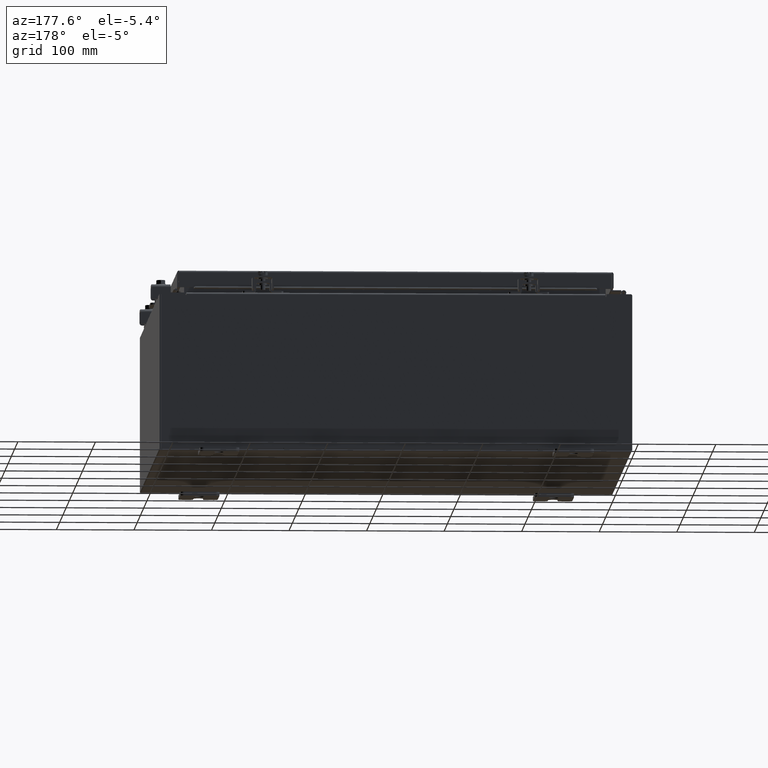
[diagram: clean part render]
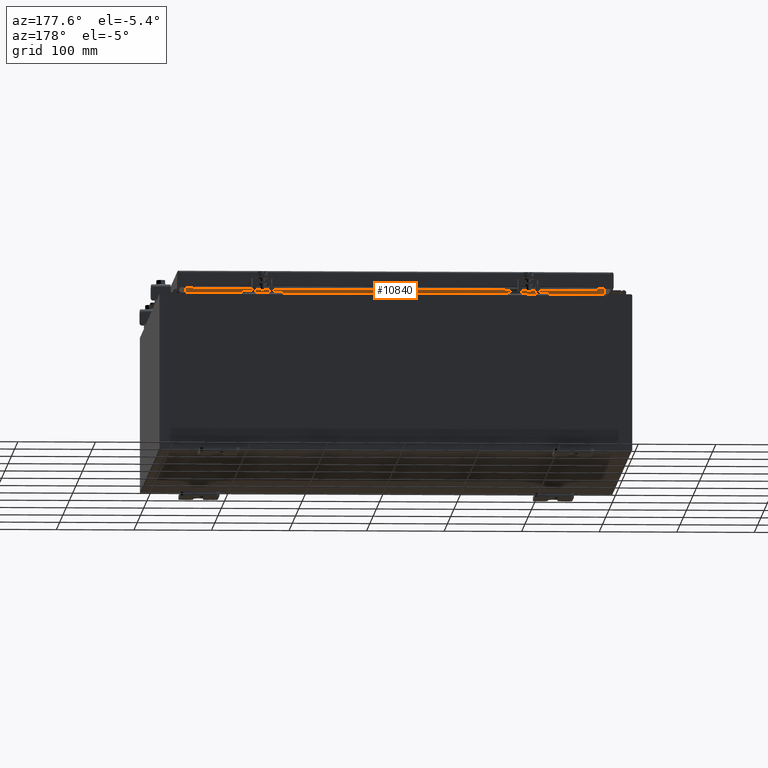
[diagram: same view with one face highlighted and labeled with its STEP entity id]
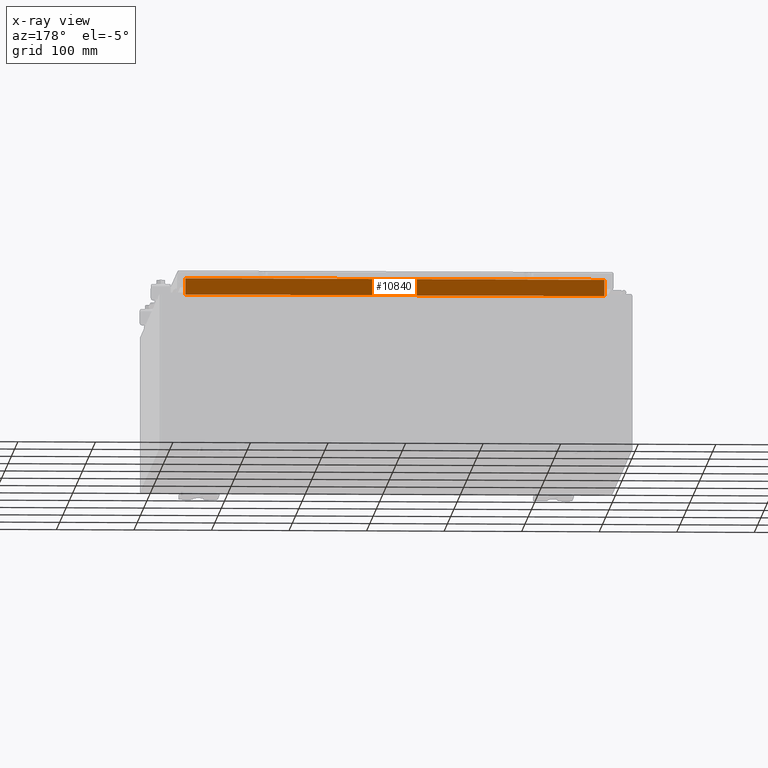
[diagram: x-ray of the same camera — body ghosted, the highlighted face saturated]
A machine part, auxiliary view. The second image highlights one B-rep face of the part: STEP entity #10840.
The next image is the same camera in x-ray: the body ghosted, the highlighted face saturated — about 0% of this face is hidden behind the body in this view.
In plain terms, the highlighted planar face has unit normal (0, 1, 0).
Its self-contained STEP definition (entity closure, byte-faithful):
#339 = CARTESIAN_POINT ( 'NONE',  ( 10.63720000000000400, -1.300299999999999300, 4.013000000000002600 ) ) ;
#802 = VECTOR ( 'NONE', #27705, 39.37007874015748100 ) ;
#1006 = LINE ( 'NONE', #21730, #6714 ) ;
#1018 = DIRECTION ( 'NONE',  ( 0.0000000000000000000, 1.000000000000000000, 0.0000000000000000000 ) ) ;
#3051 = ORIENTED_EDGE ( 'NONE', *, *, #29323, .F. ) ;
#3383 = CARTESIAN_POINT ( 'NONE',  ( 0.0000000000000000000, -1.300299999999999300, 0.0000000000000000000 ) ) ;
#5679 = VERTEX_POINT ( 'NONE', #5969 ) ;
#5969 = CARTESIAN_POINT ( 'NONE',  ( -10.63720000000000200, -1.300299999999999300, 4.837600000000003700 ) ) ;
#6306 = CARTESIAN_POINT ( 'NONE',  ( 10.63720000000000200, -1.300299999999999300, 4.837600000000003700 ) ) ;
#6511 = LINE ( 'NONE', #10244, #802 ) ;
#6714 = VECTOR ( 'NONE', #24230, 39.37007874015748100 ) ;
#8139 = DIRECTION ( 'NONE',  ( -0.0000000000000000000, -0.0000000000000000000, 1.000000000000000000 ) ) ;
#10244 = CARTESIAN_POINT ( 'NONE',  ( -10.63720000000000200, -1.300299999999999300, 4.013000000000003500 ) ) ;
#10840 = ADVANCED_FACE ( 'NONE', ( #31055 ), #15846, .T. ) ;
#13285 = VECTOR ( 'NONE', #22438, 39.37007874015748100 ) ;
#13677 = ORIENTED_EDGE ( 'NONE', *, *, #20994, .F. ) ;
#15767 = EDGE_CURVE ( 'NONE', #26511, #5679, #19167, .T. ) ;
#15846 = PLANE ( 'NONE',  #21650 ) ;
#17183 = ORIENTED_EDGE ( 'NONE', *, *, #15767, .F. ) ;
#17207 = ORIENTED_EDGE ( 'NONE', *, *, #18025, .F. ) ;
#17534 = VERTEX_POINT ( 'NONE', #27829 ) ;
#18025 = EDGE_CURVE ( 'NONE', #26760, #26511, #25659, .T. ) ;
#18375 = DIRECTION ( 'NONE',  ( 0.0000000000000000000, -0.0000000000000000000, 1.000000000000000000 ) ) ;
#19167 = LINE ( 'NONE', #30023, #13285 ) ;
#19777 = EDGE_LOOP ( 'NONE', ( #13677, #17183, #17207, #3051 ) ) ;
#20994 = EDGE_CURVE ( 'NONE', #5679, #17534, #1006, .T. ) ;
#21650 = AXIS2_PLACEMENT_3D ( 'NONE', #3383, #1018, #18375 ) ;
#21730 = CARTESIAN_POINT ( 'NONE',  ( -10.63720000000000200, -1.300299999999999300, 4.000000000000004400 ) ) ;
#22438 = DIRECTION ( 'NONE',  ( -1.000000000000000000, -0.0000000000000000000, -0.0000000000000000000 ) ) ;
#24230 = DIRECTION ( 'NONE',  ( -0.0000000000000000000, -0.0000000000000000000, -1.000000000000000000 ) ) ;
#25568 = CARTESIAN_POINT ( 'NONE',  ( 10.63720000000000200, -1.300299999999999300, 4.925300000000004500 ) ) ;
#25659 = LINE ( 'NONE', #25568, #31735 ) ;
#26511 = VERTEX_POINT ( 'NONE', #6306 ) ;
#26760 = VERTEX_POINT ( 'NONE', #339 ) ;
#27705 = DIRECTION ( 'NONE',  ( 1.000000000000000000, 0.0000000000000000000, -2.568202152506545800E-017 ) ) ;
#27829 = CARTESIAN_POINT ( 'NONE',  ( -10.63720000000000400, -1.300299999999999300, 4.013000000000002600 ) ) ;
#29323 = EDGE_CURVE ( 'NONE', #17534, #26760, #6511, .T. ) ;
#30023 = CARTESIAN_POINT ( 'NONE',  ( 10.63720000000000200, -1.300299999999999300, 4.837600000000003700 ) ) ;
#31055 = FACE_OUTER_BOUND ( 'NONE', #19777, .T. ) ;
#31735 = VECTOR ( 'NONE', #8139, 39.37007874015748100 ) ;